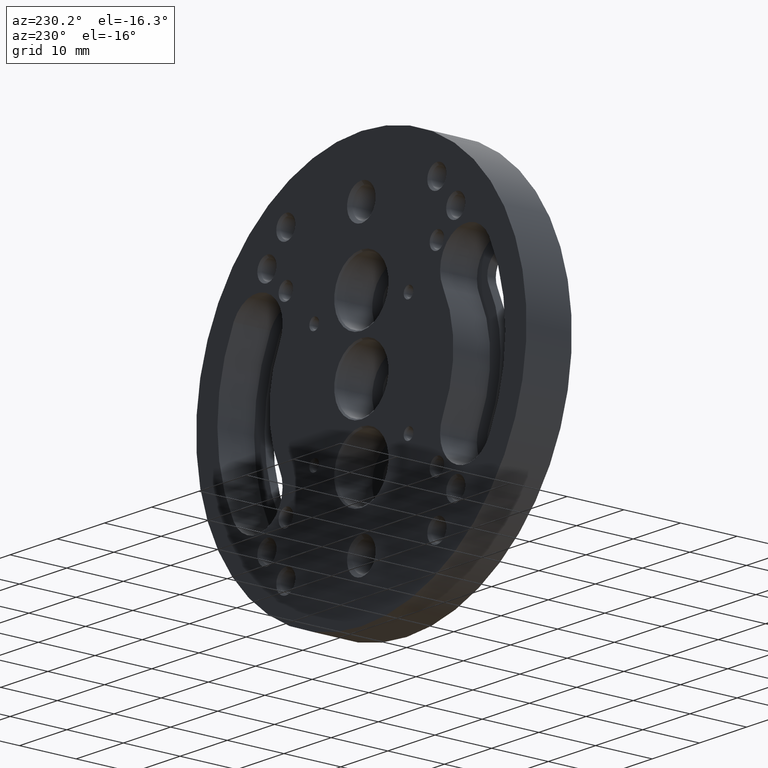
[diagram: clean part render]
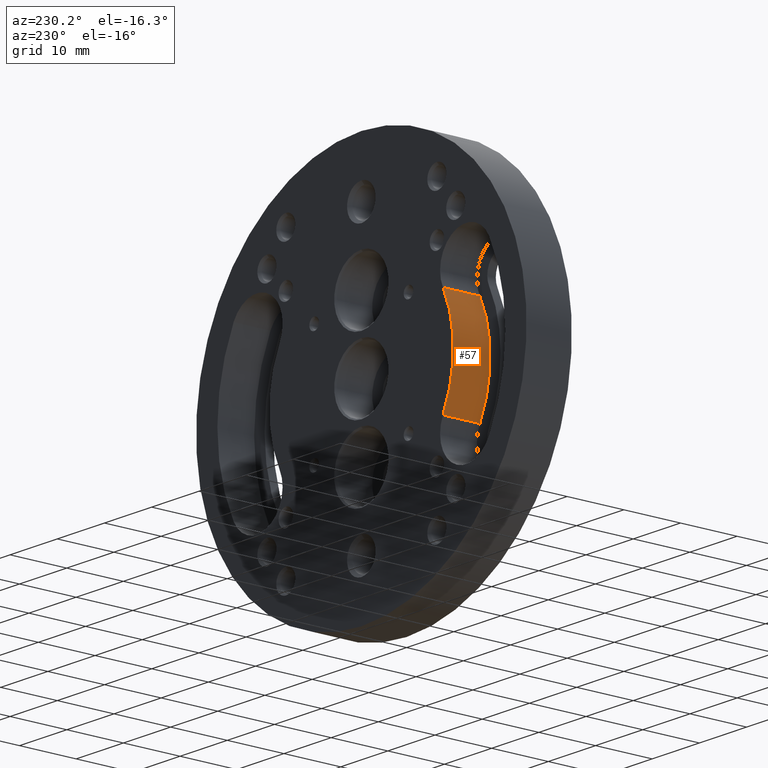
[diagram: same view with one face highlighted and labeled with its STEP entity id]
A machine part, auxiliary view. The second image highlights one B-rep face of the part: STEP entity #57.
In plain terms, the highlighted cylindrical surface (partial cylindrical patch) has radius 19.5 mm, axis along (-0, 1, -0).
Its self-contained STEP definition (entity closure, byte-faithful):
#13 = FACE_OUTER_BOUND ( 'NONE', #453, .T. ) ;
#36 = CYLINDRICAL_SURFACE ( 'NONE', #399, 19.49999999999999645 ) ;
#57 = ADVANCED_FACE ( 'NONE', ( #13 ), #36, .T. ) ;
#152 = CARTESIAN_POINT ( 'NONE',  ( 0.000000000000000000, 1.500000000000000444, 0.000000000000000000 ) ) ;
#160 = VERTEX_POINT ( 'NONE', #663 ) ;
#170 = CARTESIAN_POINT ( 'NONE',  ( -17.29671124697530615, 1.500000000000000444, -9.004097958083184139 ) ) ;
#183 = VERTEX_POINT ( 'NONE', #1020 ) ;
#330 = VECTOR ( 'NONE', #469, 1000.000000000000000 ) ;
#399 = AXIS2_PLACEMENT_3D ( 'NONE', #152, #643, #471 ) ;
#413 = CARTESIAN_POINT ( 'NONE',  ( -17.29671124697530615, 8.000000000000000000, 9.004097958083184139 ) ) ;
#453 = EDGE_LOOP ( 'NONE', ( #1500, #1304, #1788, #871 ) ) ;
#469 = DIRECTION ( 'NONE',  ( -0.000000000000000000, 1.000000000000000000, -0.000000000000000000 ) ) ;
#471 = DIRECTION ( 'NONE',  ( 0.000000000000000000, 0.000000000000000000, 1.000000000000000000 ) ) ;
#580 = DIRECTION ( 'NONE',  ( -0.000000000000000000, 1.000000000000000000, 0.000000000000000000 ) ) ;
#643 = DIRECTION ( 'NONE',  ( -0.000000000000000000, 1.000000000000000000, -0.000000000000000000 ) ) ;
#663 = CARTESIAN_POINT ( 'NONE',  ( -17.29671124697530615, 1.500000000000000444, 9.004097958083184139 ) ) ;
#743 = DIRECTION ( 'NONE',  ( 0.000000000000000000, 0.000000000000000000, 1.000000000000000000 ) ) ;
#871 = ORIENTED_EDGE ( 'NONE', *, *, #1244, .T. ) ;
#906 = CARTESIAN_POINT ( 'NONE',  ( -17.29671124697530615, 1.500000000000000444, 9.004097958083184139 ) ) ;
#1020 = CARTESIAN_POINT ( 'NONE',  ( -17.29671124697530615, 8.000000000000000000, -9.004097958083184139 ) ) ;
#1108 = VECTOR ( 'NONE', #1332, 1000.000000000000000 ) ;
#1157 = CIRCLE ( 'NONE', #1439, 19.49999999999999645 ) ;
#1194 = LINE ( 'NONE', #906, #1108 ) ;
#1244 = EDGE_CURVE ( 'NONE', #160, #1276, #1194, .T. ) ;
#1256 = EDGE_CURVE ( 'NONE', #1521, #160, #1886, .T. ) ;
#1276 = VERTEX_POINT ( 'NONE', #413 ) ;
#1304 = ORIENTED_EDGE ( 'NONE', *, *, #1827, .F. ) ;
#1332 = DIRECTION ( 'NONE',  ( -0.000000000000000000, 1.000000000000000000, -0.000000000000000000 ) ) ;
#1348 = DIRECTION ( 'NONE',  ( 0.000000000000000000, 0.000000000000000000, 1.000000000000000000 ) ) ;
#1350 = CARTESIAN_POINT ( 'NONE',  ( 0.000000000000000000, 1.500000000000000444, 0.000000000000000000 ) ) ;
#1439 = AXIS2_PLACEMENT_3D ( 'NONE', #1501, #1482, #1348 ) ;
#1482 = DIRECTION ( 'NONE',  ( -0.000000000000000000, 1.000000000000000000, 0.000000000000000000 ) ) ;
#1500 = ORIENTED_EDGE ( 'NONE', *, *, #1679, .F. ) ;
#1501 = CARTESIAN_POINT ( 'NONE',  ( 0.000000000000000000, 8.000000000000000000, 0.000000000000000000 ) ) ;
#1521 = VERTEX_POINT ( 'NONE', #1730 ) ;
#1679 = EDGE_CURVE ( 'NONE', #183, #1276, #1157, .T. ) ;
#1719 = LINE ( 'NONE', #170, #330 ) ;
#1730 = CARTESIAN_POINT ( 'NONE',  ( -17.29671124697530615, 1.500000000000000444, -9.004097958083184139 ) ) ;
#1755 = AXIS2_PLACEMENT_3D ( 'NONE', #1350, #580, #743 ) ;
#1788 = ORIENTED_EDGE ( 'NONE', *, *, #1256, .T. ) ;
#1827 = EDGE_CURVE ( 'NONE', #1521, #183, #1719, .T. ) ;
#1886 = CIRCLE ( 'NONE', #1755, 19.49999999999999645 ) ;